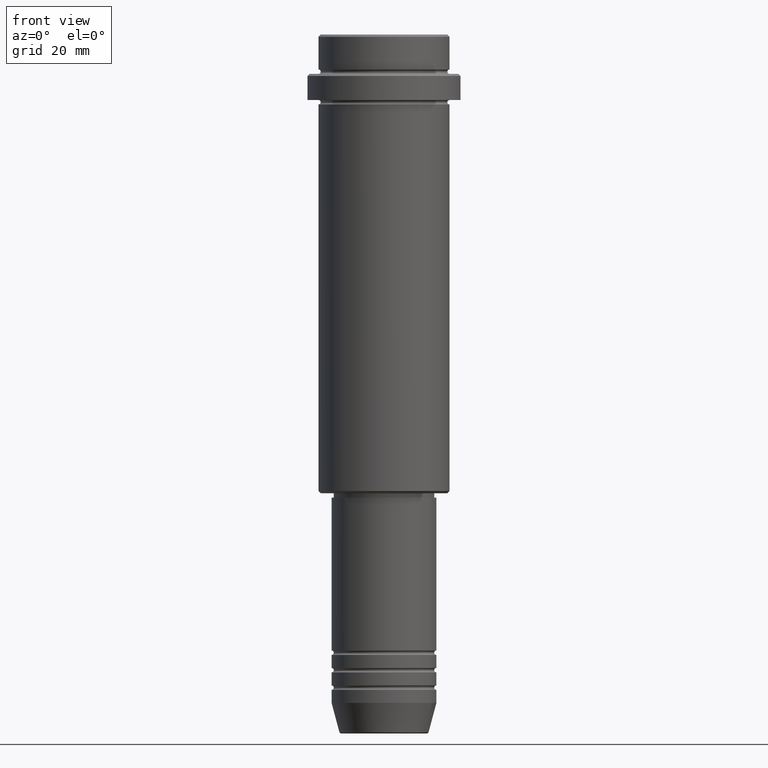
[diagram: clean part render]
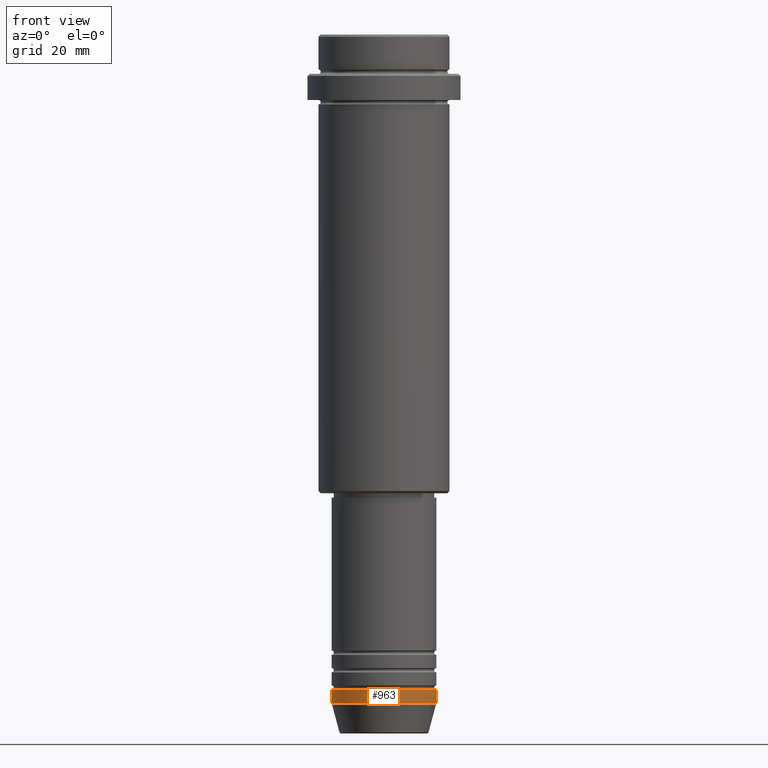
[diagram: same view with one face highlighted and labeled with its STEP entity id]
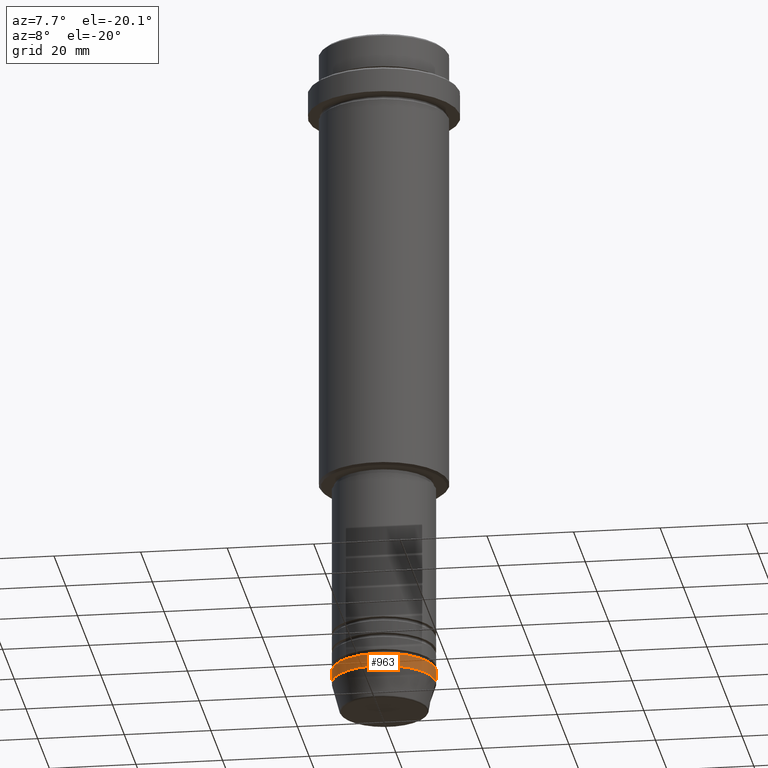
[diagram: same view with one face highlighted and labeled with its STEP entity id]
A machine part, front view. The second image highlights one B-rep face of the part: STEP entity #963.
A second angle (auxiliary view) of the same face is appended — the face is thin or edge-on in the first view.
In plain terms, the highlighted cylindrical surface (partial cylindrical patch) has radius 12 mm, axis along (-0, -0, 1).
Its self-contained STEP definition (entity closure, byte-faithful):
#44 = CARTESIAN_POINT ( 'NONE',  ( -12.00000000000000000, 1.469576158976823947E-15, -150.0000000000000000 ) ) ;
#93 = CIRCLE ( 'NONE', #1371, 12.00000000000000000 ) ;
#96 = ORIENTED_EDGE ( 'NONE', *, *, #626, .T. ) ;
#120 = CARTESIAN_POINT ( 'NONE',  ( 0.000000000000000000, 0.000000000000000000, -153.0000000000000000 ) ) ;
#124 = VERTEX_POINT ( 'NONE', #44 ) ;
#133 = EDGE_LOOP ( 'NONE', ( #232, #381, #96, #850 ) ) ;
#141 = CARTESIAN_POINT ( 'NONE',  ( -12.00000000000000000, 1.469576158976823947E-15, 0.000000000000000000 ) ) ;
#160 = VERTEX_POINT ( 'NONE', #830 ) ;
#174 = CIRCLE ( 'NONE', #1223, 12.00000000000000000 ) ;
#232 = ORIENTED_EDGE ( 'NONE', *, *, #1039, .F. ) ;
#233 = DIRECTION ( 'NONE',  ( 1.000000000000000000, 0.000000000000000000, 0.000000000000000000 ) ) ;
#312 = AXIS2_PLACEMENT_3D ( 'NONE', #1046, #393, #834 ) ;
#373 = VERTEX_POINT ( 'NONE', #1229 ) ;
#381 = ORIENTED_EDGE ( 'NONE', *, *, #1415, .T. ) ;
#393 = DIRECTION ( 'NONE',  ( -0.000000000000000000, -0.000000000000000000, 1.000000000000000000 ) ) ;
#446 = EDGE_CURVE ( 'NONE', #124, #373, #174, .T. ) ;
#453 = VECTOR ( 'NONE', #588, 1000.000000000000000 ) ;
#483 = CARTESIAN_POINT ( 'NONE',  ( 12.00000000000000000, 0.000000000000000000, -153.0000000000000000 ) ) ;
#588 = DIRECTION ( 'NONE',  ( -0.000000000000000000, -0.000000000000000000, 1.000000000000000000 ) ) ;
#619 = LINE ( 'NONE', #141, #848 ) ;
#626 = EDGE_CURVE ( 'NONE', #1232, #373, #723, .T. ) ;
#681 = DIRECTION ( 'NONE',  ( -0.000000000000000000, -0.000000000000000000, 1.000000000000000000 ) ) ;
#723 = LINE ( 'NONE', #952, #453 ) ;
#830 = CARTESIAN_POINT ( 'NONE',  ( -12.00000000000000000, 1.469576158976823947E-15, -153.0000000000000000 ) ) ;
#834 = DIRECTION ( 'NONE',  ( 1.000000000000000000, 0.000000000000000000, 0.000000000000000000 ) ) ;
#848 = VECTOR ( 'NONE', #1033, 1000.000000000000000 ) ;
#850 = ORIENTED_EDGE ( 'NONE', *, *, #446, .F. ) ;
#923 = FACE_OUTER_BOUND ( 'NONE', #133, .T. ) ;
#952 = CARTESIAN_POINT ( 'NONE',  ( 12.00000000000000000, 0.000000000000000000, 0.000000000000000000 ) ) ;
#963 = ADVANCED_FACE ( 'NONE', ( #923 ), #1352, .T. ) ;
#1014 = DIRECTION ( 'NONE',  ( 1.000000000000000000, 0.000000000000000000, 0.000000000000000000 ) ) ;
#1033 = DIRECTION ( 'NONE',  ( -0.000000000000000000, -0.000000000000000000, 1.000000000000000000 ) ) ;
#1039 = EDGE_CURVE ( 'NONE', #160, #124, #619, .T. ) ;
#1046 = CARTESIAN_POINT ( 'NONE',  ( 0.000000000000000000, 0.000000000000000000, 0.000000000000000000 ) ) ;
#1118 = CARTESIAN_POINT ( 'NONE',  ( 0.000000000000000000, 0.000000000000000000, -150.0000000000000000 ) ) ;
#1210 = DIRECTION ( 'NONE',  ( -0.000000000000000000, -0.000000000000000000, 1.000000000000000000 ) ) ;
#1223 = AXIS2_PLACEMENT_3D ( 'NONE', #1118, #1210, #233 ) ;
#1229 = CARTESIAN_POINT ( 'NONE',  ( 12.00000000000000000, 0.000000000000000000, -150.0000000000000000 ) ) ;
#1232 = VERTEX_POINT ( 'NONE', #483 ) ;
#1352 = CYLINDRICAL_SURFACE ( 'NONE', #312, 12.00000000000000000 ) ;
#1371 = AXIS2_PLACEMENT_3D ( 'NONE', #120, #681, #1014 ) ;
#1415 = EDGE_CURVE ( 'NONE', #160, #1232, #93, .T. ) ;